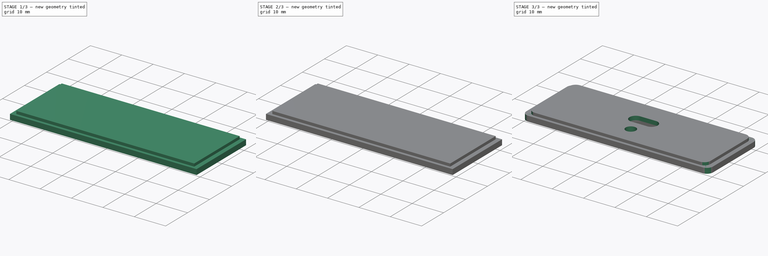
[diagram: build sequence overview — one tinted view per stage of 3, left to right]
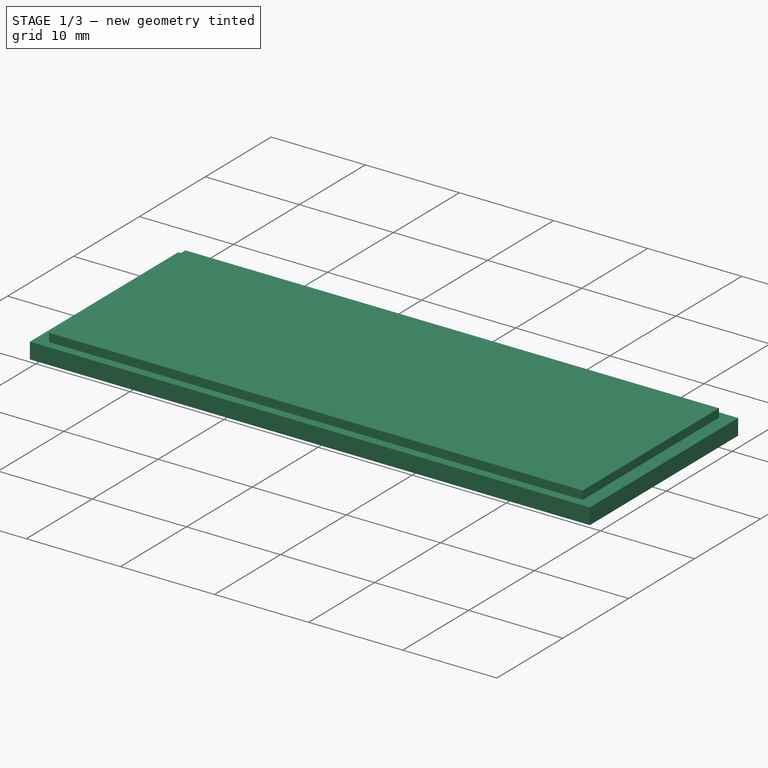
[diagram: stage 1 of 3 — iso view after this stage's code; geometry added in this stage tinted green]
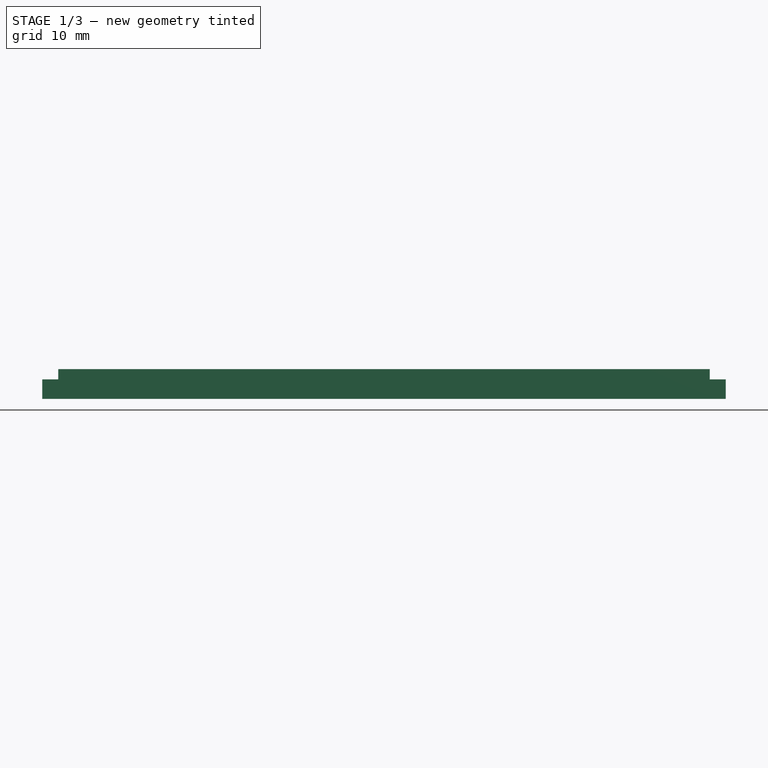
[diagram: stage 1 of 3 — front view after this stage's code; geometry added in this stage tinted green]
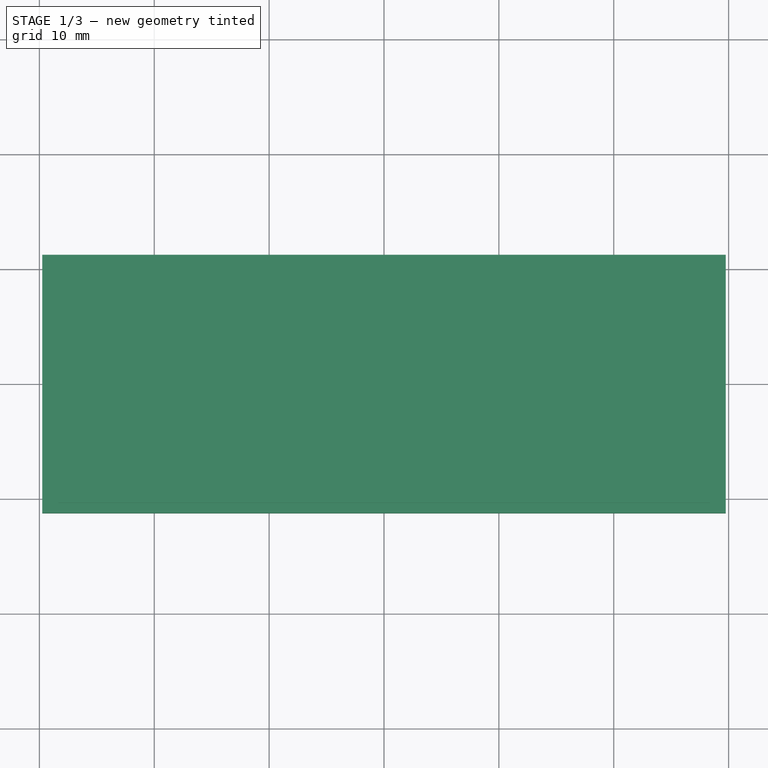
[diagram: stage 1 of 3 — top view after this stage's code; geometry added in this stage tinted green]
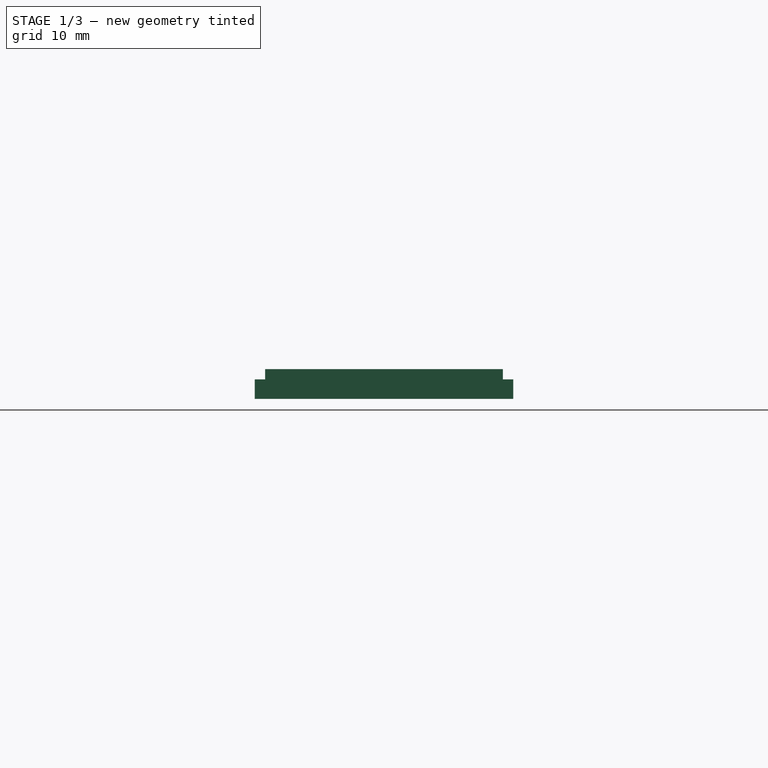
[diagram: stage 1 of 3 — right view after this stage's code; geometry added in this stage tinted green]
FCSTD DOCUMENT  (FreeCAD 0.18.4R)
Label: end_panel2
License: All rights reserved
LicenseURL: http://en.wikipedia.org/wiki/All_rights_reserved
objects: Sketcher::SketchObject×5, PartDesign::Pocket×3, PartDesign::Pad×2, PartDesign::Fillet×1, PartDesign::Body×1, TechDraw::DrawSVGTemplate×1, TechDraw::DrawViewPart×1, TechDraw::DrawPage×1
note: 17 computed .brp shape members not serialized (recipe doc carries the construction recipe); baked Part::Feature solids carry a one-line shape summary decoded from their .brp

FEATURE [Sketcher::SketchObject] Sketch
  MapMode = 5
  Support = -> [XY_Plane]
  sketch-geometry (4):
    g0: LineSegment StartX=-29.75 StartY=11.25 StartZ=0 EndX=29.75 EndY=11.25 EndZ=0
    g1: LineSegment StartX=29.75 StartY=11.25 StartZ=0 EndX=29.75 EndY=-11.25 EndZ=0
    g2: LineSegment StartX=29.75 StartY=-11.25 StartZ=0 EndX=-29.75 EndY=-11.25 EndZ=0
    g3: LineSegment StartX=-29.75 StartY=-11.25 StartZ=0 EndX=-29.75 EndY=11.25 EndZ=0
  constraints (11):
    c: Coincident(g0,g1)
    c: Coincident(g1,g2)
    c: Coincident(g2,g3)
    c: Coincident(g3,g0)
    c: Horizontal(g0)
    c: Horizontal(g2)
    c: Vertical(g1)
    c: Vertical(g3)
    c: Symmetric(g0,g2,g-1)
    c: DistanceX(g0,g0) = 59.5
    c: DistanceY(g3,g3) = 22.5
FEATURE [PartDesign::Pad] Pad
  Length = 1.7
  Length2 = 100
  Profile = -> Sketch
  Refine = true
  Type = 0
FEATURE [Sketcher::SketchObject] Sketch001
  MapMode = 5
  Placement = pos=(0,0,1.7) rot=(0,0,1;0rad)
  Support = -> [Pad]
  sketch-geometry (4):
    g0: LineSegment StartX=-28.35 StartY=10.35 StartZ=0 EndX=28.35 EndY=10.35 EndZ=0
    g1: LineSegment StartX=28.35 StartY=10.35 StartZ=0 EndX=28.35 EndY=-10.35 EndZ=0
    g2: LineSegment StartX=28.35 StartY=-10.35 StartZ=0 EndX=-28.35 EndY=-10.35 EndZ=0
    g3: LineSegment StartX=-28.35 StartY=-10.35 StartZ=0 EndX=-28.35 EndY=10.35 EndZ=0
  constraints (11):
    c: Coincident(g0,g1)
    c: Coincident(g1,g2)
    c: Coincident(g2,g3)
    c: Coincident(g3,g0)
    c: Horizontal(g0)
    c: Horizontal(g2)
    c: Vertical(g1)
    c: Vertical(g3)
    c: Symmetric(g2,g0,g-1)
    c: DistanceX(g0,g0) = 56.7
    c: DistanceY(g3,g3) = 20.7
FEATURE [PartDesign::Pad] Pad001
  BaseFeature = -> Pad
  Length = 0.9
  Length2 = 100
  Profile = -> Sketch001
  Refine = true
  Type = 0
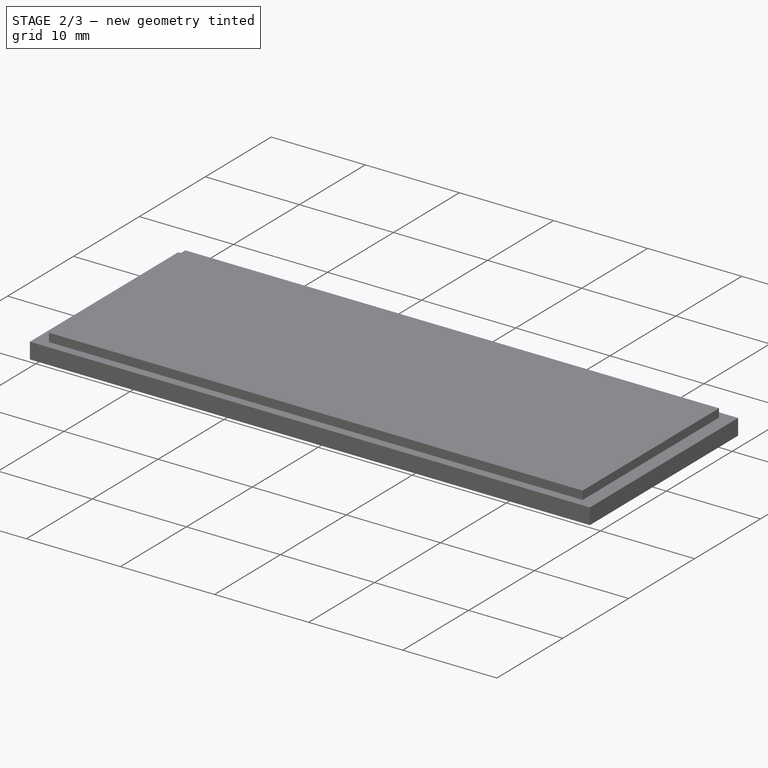
[diagram: stage 2 of 3 — iso view after this stage's code; geometry added in this stage tinted green]
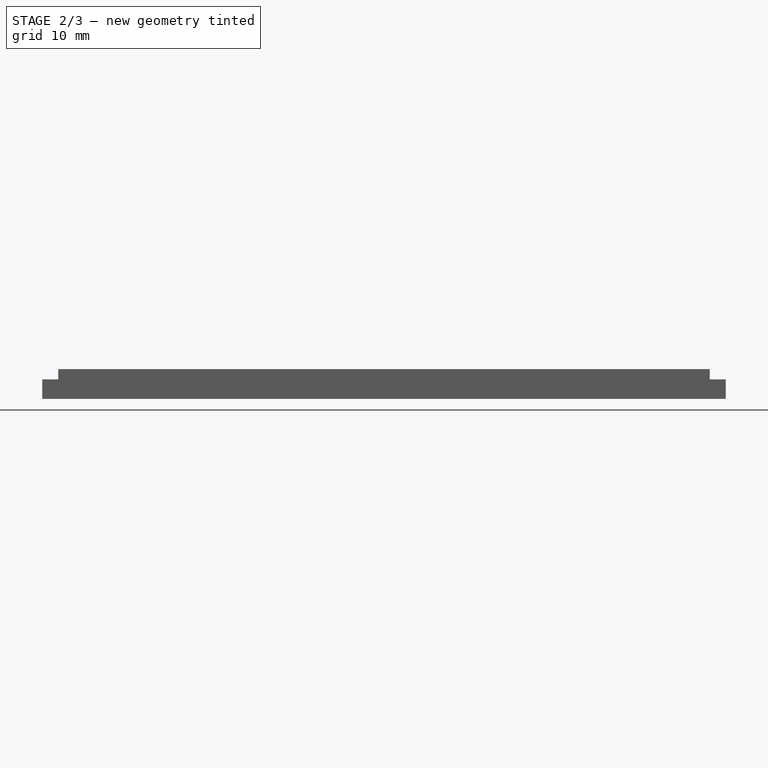
[diagram: stage 2 of 3 — front view after this stage's code; geometry added in this stage tinted green]
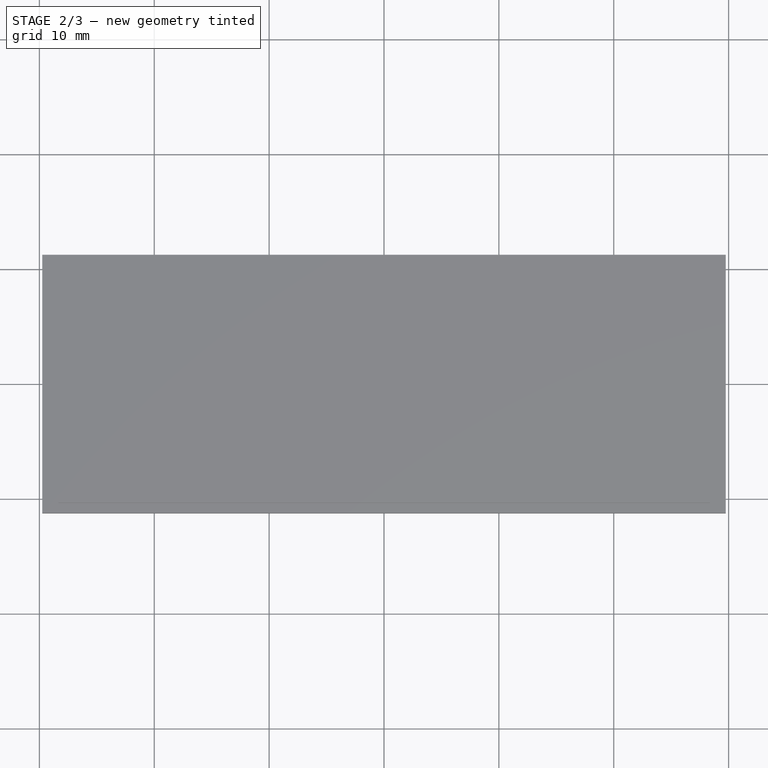
[diagram: stage 2 of 3 — top view after this stage's code; geometry added in this stage tinted green]
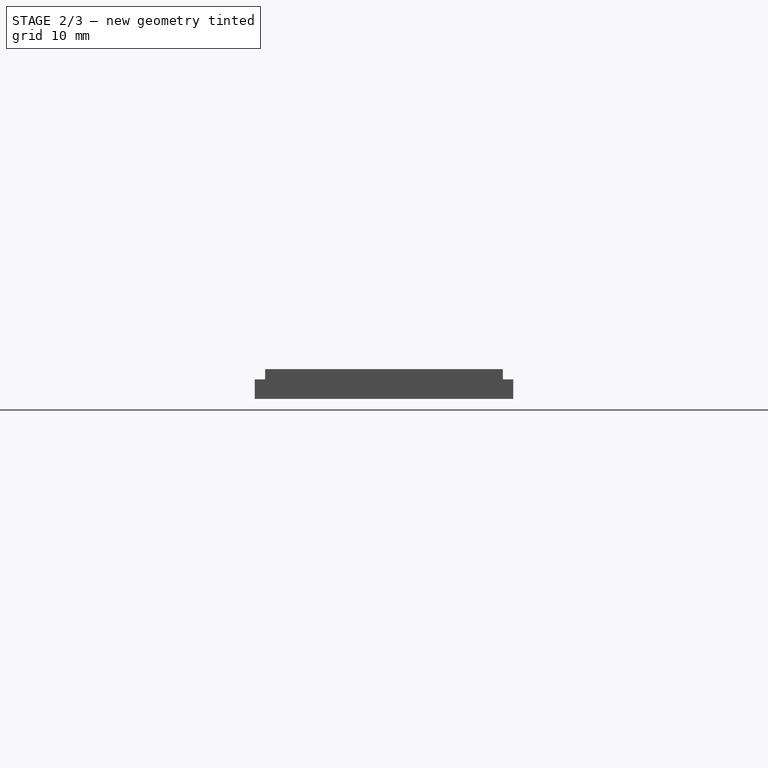
[diagram: stage 2 of 3 — right view after this stage's code; geometry added in this stage tinted green]
FEATURE [Sketcher::SketchObject] Sketch002
  ExternalGeometry = -> [Pad001]
  MapMode = 5
  Placement = pos=(0,0,0) rot=(1,0,0;3.14159rad)
  Support = -> [Pad001]
  expr: Constraints[28] = 6 + 1.6 + 2
  sketch-geometry (12):
    g0: LineSegment StartX=3.17543 StartY=4.175 StartZ=0 EndX=1.58771 EndY=6.925 EndZ=0
    g1: LineSegment StartX=1.58771 StartY=6.925 StartZ=0 EndX=-1.58771 EndY=6.925 EndZ=0
    g2: LineSegment StartX=-1.58771 StartY=6.925 StartZ=0 EndX=-3.17543 EndY=4.175 EndZ=0
    g3: LineSegment StartX=-3.17543 StartY=4.175 StartZ=0 EndX=-1.58771 EndY=1.425 EndZ=0
    g4: LineSegment StartX=-1.58771 StartY=1.425 StartZ=0 EndX=1.58771 EndY=1.425 EndZ=0
    g5: LineSegment StartX=1.58771 StartY=1.425 StartZ=0 EndX=3.17543 EndY=4.175 EndZ=0
    g6: Circle [constr] CenterX=0 CenterY=4.175 CenterZ=0 NormalX=0 NormalY=0 NormalZ=1 AngleXU=0 Radius=3.17543
    g7: LineSegment StartX=-5.25 StartY=0.925 StartZ=0 EndX=5.25 EndY=0.925 EndZ=0
    g8: LineSegment StartX=5.25 StartY=0.925 StartZ=0 EndX=5.25 EndY=-4.225 EndZ=0
    g9: LineSegment StartX=5.25 StartY=-4.225 StartZ=0 EndX=-5.25 EndY=-4.225 EndZ=0
    g10: LineSegment StartX=-5.25 StartY=-4.225 StartZ=0 EndX=-5.25 EndY=0.925 EndZ=0
    g11: GeomPoint X=0 Y=-1.65 Z=0
  constraints (30):
    c: Coincident(g0,g1)
    c: Coincident(g1,g2)
    c: Coincident(g2,g3)
    c: Coincident(g3,g4)
    c: Coincident(g4,g5)
    c: Coincident(g5,g0)
    c: Equal(g0, g1-g5) x5
    c: PointOnObject(g0,g6)
    c: PointOnObject(g1,g6)
    c: PointOnObject(g2,g6)
    c: PointOnObject(g3,g6)
    c: PointOnObject(g4,g6)
    c: PointOnObject(g5,g6)
    c: PointOnObject(g6,g-2)
    c: Horizontal(g1)
    c: Distance(g0,g4) = 5.5
    c: Coincident(g7,g8)
    c: Coincident(g8,g9)
    c: Coincident(g9,g10)
    c: Coincident(g10,g7)
    c: Horizontal(g9)
    c: Vertical(g8)
    c: Vertical(g10)
    c: PointOnObject(g11,g-2)
    c: DistanceY(g-3,g11) = 9.6
    c: Symmetric(g7,g9,g11)
    c: Horizontal(g7)
    c: DistanceY(g10,g10) = 5.15
    c: DistanceX(g7,g7) = 10.5
    c: DistanceY(g8,g6) = 8.4
FEATURE [PartDesign::Pocket] Pocket
  BaseFeature = -> Pad001
  Length = 0.7
  Length2 = 100
  Profile = -> Sketch002
  Refine = true
  Type = 0
FEATURE [Sketcher::SketchObject] Sketch003
  ExternalGeometry = -> [Pocket]
  MapMode = 5
  Placement = pos=(0,0,0.7) rot=(1,0,0;3.14159rad)
  Support = -> [Pocket]
  sketch-geometry (7):
    g0: GeomPoint X=-3e-16 Y=-1.65 Z=0
    g1: ArcOfCircle CenterX=-2.5 CenterY=-1.65 CenterZ=0 NormalX=0 NormalY=0 NormalZ=1 AngleXU=0 Radius=2.5 StartAngle=1.5708 EndAngle=4.71239
    g2: ArcOfCircle CenterX=2.5 CenterY=-1.65 CenterZ=0 NormalX=0 NormalY=0 NormalZ=1 AngleXU=0 Radius=2.5 StartAngle=4.71239 EndAngle=7.85398
    g3: LineSegment StartX=-2.5 StartY=-4.15 StartZ=0 EndX=2.5 EndY=-4.15 EndZ=0
    g4: LineSegment StartX=-2.5 StartY=0.85 StartZ=0 EndX=2.5 EndY=0.85 EndZ=0
    g5: GeomPoint X=-5 Y=-1.65 Z=0
    g6: GeomPoint X=5 Y=-1.65 Z=0
  constraints (14):
    c: Symmetric(g-7,g-8,g0)
    c: Tangent(g1,g4) = 1.5708
    c: Tangent(g1,g3) = -1.5708
    c: Tangent(g3,g2) = -1.5708
    c: Tangent(g4,g2) = 1.5708
    c: Horizontal(g3)
    c: Equal(g1,g2)
    c: Symmetric(g1,g2,g0)
    c: PointOnObject(g5,g1)
    c: PointOnObject(g6,g2)
    c: Horizontal(g5,g0)
    c: Horizontal(g0,g6)
    c: DistanceX(g5,g6) = 10
    c: DistanceY(g2,g2) = 5
FEATURE [PartDesign::Pocket] Pocket001
  BaseFeature = -> Pocket
  Length = 0.6
  Length2 = 100
  Profile = -> Sketch003
  Refine = true
  Type = 0
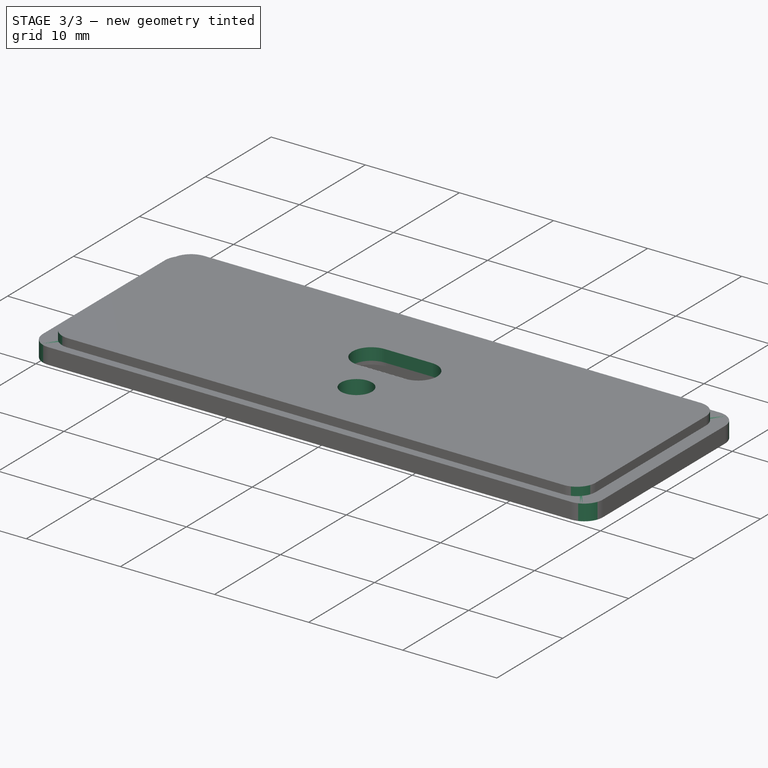
[diagram: stage 3 of 3 — iso view after this stage's code; geometry added in this stage tinted green]
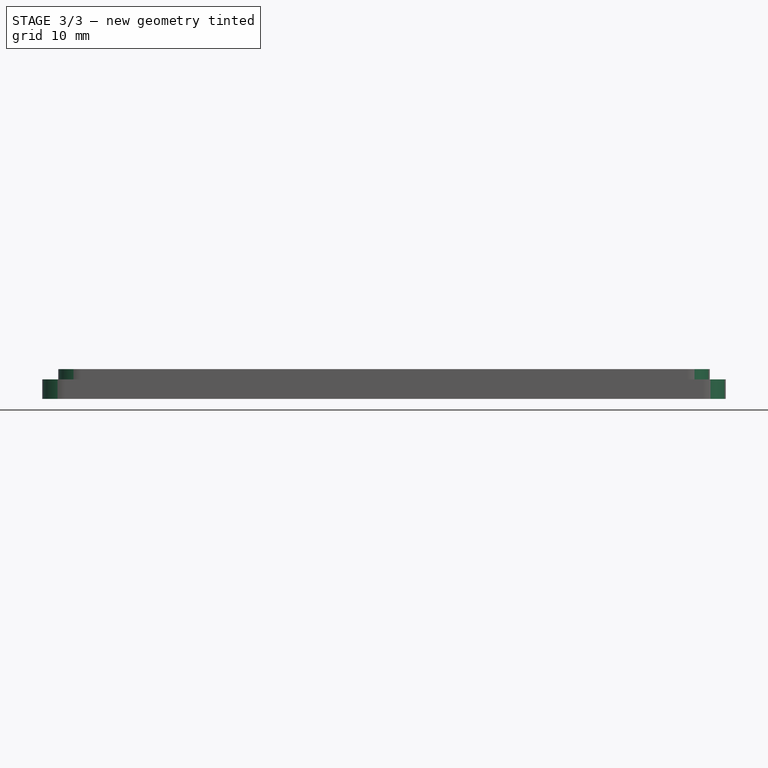
[diagram: stage 3 of 3 — front view after this stage's code; geometry added in this stage tinted green]
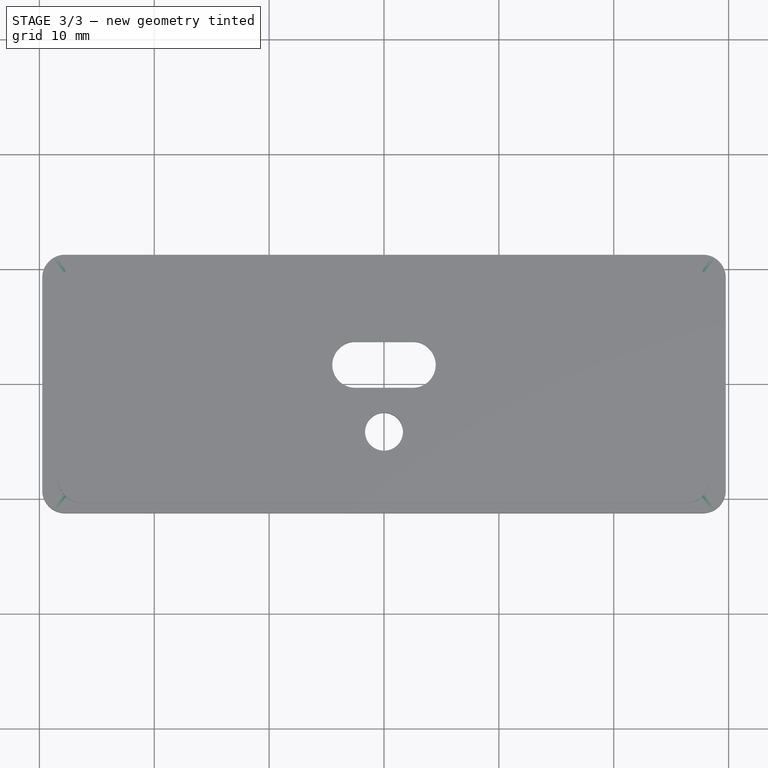
[diagram: stage 3 of 3 — top view after this stage's code; geometry added in this stage tinted green]
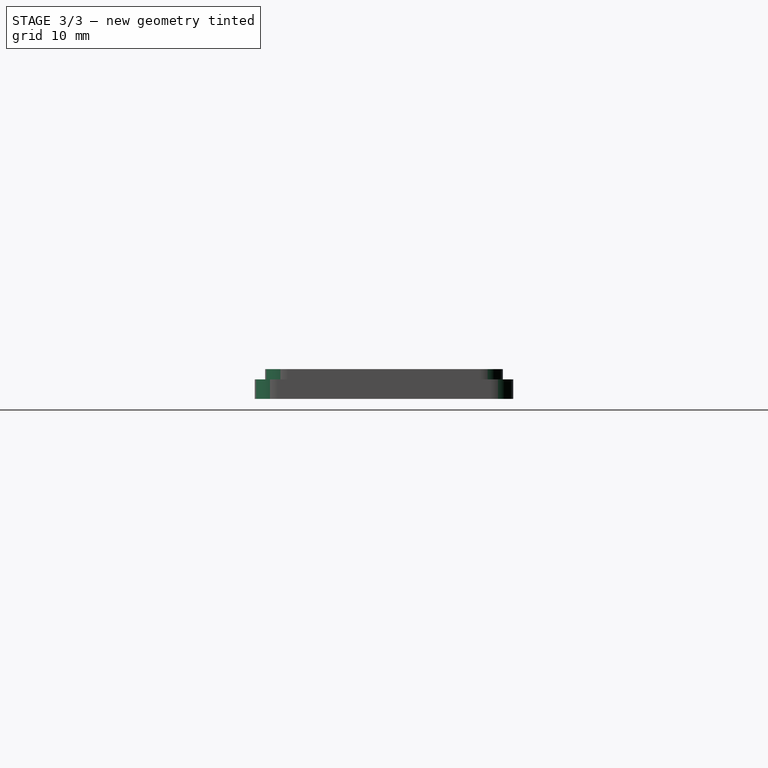
[diagram: stage 3 of 3 — right view after this stage's code; geometry added in this stage tinted green]
FEATURE [Sketcher::SketchObject] Sketch004
  ExternalGeometry = -> [Pocket001]
  MapMode = 5
  Placement = pos=(0,0,0.7) rot=(1,0,0;3.14159rad)
  Support = -> [Pocket001]
  sketch-geometry (8):
    g0: GeomPoint X=0 Y=4.175 Z=0
    g1: GeomPoint X=-3e-16 Y=-1.65 Z=0
    g2: ArcOfCircle CenterX=-2.5 CenterY=-1.65 CenterZ=0 NormalX=0 NormalY=0 NormalZ=1 AngleXU=0 Radius=2 StartAngle=1.5708 EndAngle=4.71239
    g3: ArcOfCircle CenterX=2.5 CenterY=-1.65 CenterZ=0 NormalX=0 NormalY=0 NormalZ=1 AngleXU=0 Radius=2 StartAngle=4.71239 EndAngle=7.85398
    g4: LineSegment StartX=-2.5 StartY=-3.65 StartZ=0 EndX=2.5 EndY=-3.65 EndZ=0
    g5: LineSegment StartX=-2.5 StartY=0.35 StartZ=0 EndX=2.5 EndY=0.35 EndZ=0
    g6: LineSegment [constr] StartX=-4.5 StartY=-1.65 StartZ=0 EndX=4.5 EndY=-1.65 EndZ=0
    g7: Circle CenterX=0 CenterY=4.175 CenterZ=0 NormalX=0 NormalY=0 NormalZ=1 AngleXU=0 Radius=1.65
  constraints (17):
    c: Symmetric(g-5,g-6,g1)
    c: Symmetric(g-3,g-4,g0)
    c: Tangent(g2,g5) = 1.5708
    c: Tangent(g2,g4) = -1.5708
    c: Tangent(g4,g3) = -1.5708
    c: Tangent(g5,g3) = 1.5708
    c: Horizontal(g4)
    c: Equal(g2,g3)
    c: Symmetric(g3,g2,g1)
    c: PointOnObject(g6,g2)
    c: PointOnObject(g6,g3)
    c: PointOnObject(g1,g6)
    c: Horizontal(g6)
    c: DistanceX(g6,g6) = 9
    c: DistanceY(g3,g3) = 4
    c: Coincident(g7,g0)
    c: Diameter(g7) = 3.3
FEATURE [PartDesign::Pocket] Pocket002
  BaseFeature = -> Pocket001
  Length = 5
  Length2 = 100
  Profile = -> Sketch004
  Refine = true
  Type = 1
FEATURE [PartDesign::Fillet] Fillet
  Base = -> Pocket002 [Edge5,Edge52,Edge1,Edge47,Edge50,Edge8,Edge48,Edge2]
  BaseFeature = -> Pocket002
  Radius = 2
FEATURE [PartDesign::Body] Body
  Group = -> [Sketch,Pad,Sketch001,Pad001,Sketch002,Pocket,Sketch003,Pocket001,Sketch004,Pocket002,Fillet]
  Origin = -> Origin
  Tip = -> Fillet
FEATURE [TechDraw::DrawSVGTemplate] Template
  EditableTexts = Designed_by_Name=Designed by Name; Drawing_number=Drawing number; FC-Date=Date; FC-SC=Scale; FC-SH=Sheet; FC-Title=Title; Subtitle=Subtitle; Weight=Weight
  Height = 210
  Orientation = 1
  Width = 297
FEATURE [TechDraw::DrawViewPart] View
  CoarseView = false
  Direction = (0,0,1)
  Focus = 100
  HardHidden = false
  IsoCount = 0
  IsoHidden = false
  IsoVisible = false
  LockPosition = false
  Perspective = false
  Rotation = 0
  ScaleType = 0
  SeamHidden = false
  SeamVisible = false
  SmoothHidden = false
  SmoothVisible = false
  Source = -> [Pad]
  X = 148.5
  Y = 105
FEATURE [TechDraw::DrawPage] Page
  KeepUpdated = true
  ProjectionType = 0
  Template = -> Template
  Views = -> [View]
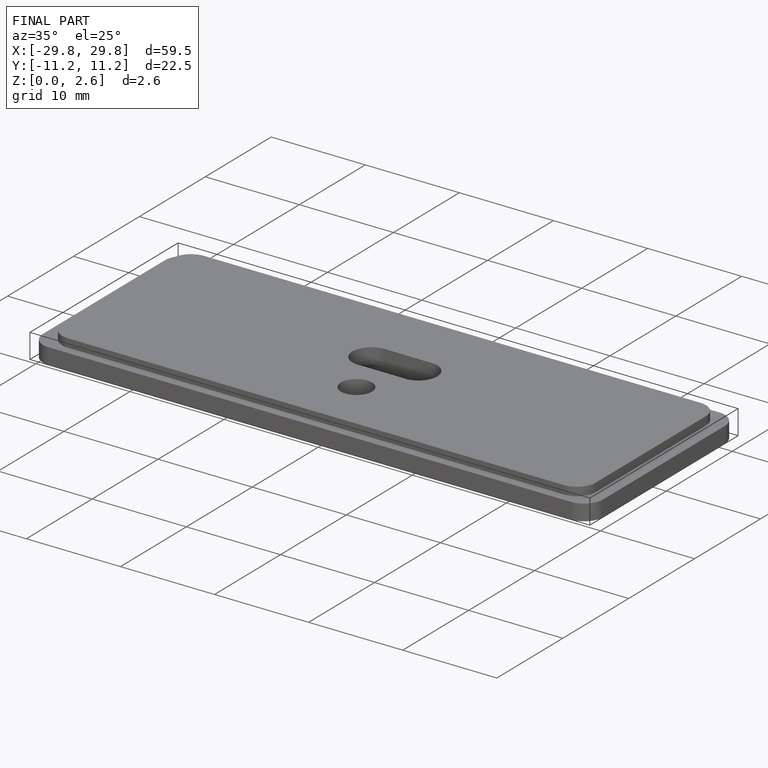
[diagram: finished part — iso view with bounding-box wireframe]
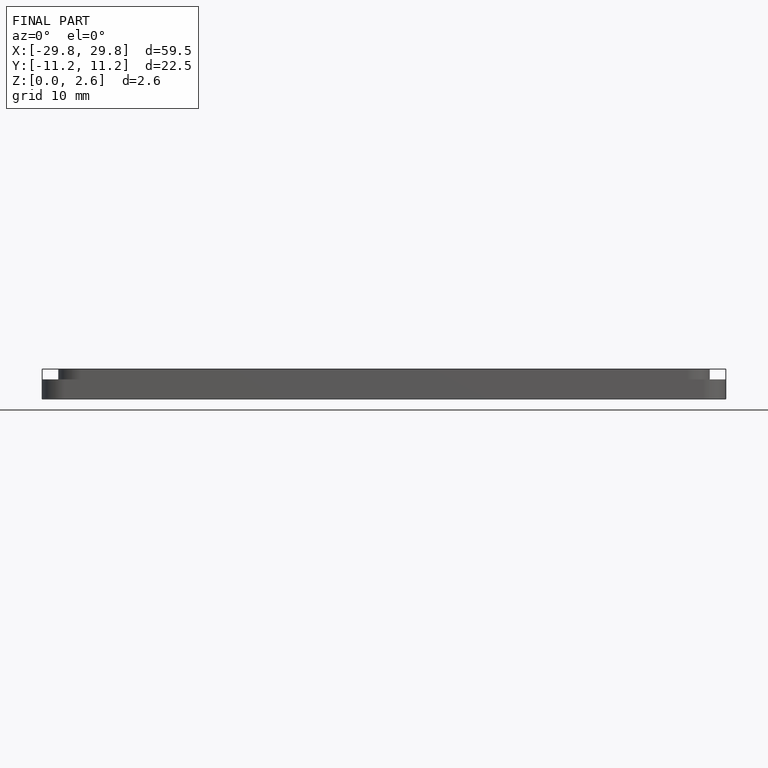
[diagram: finished part — front view with bounding-box wireframe]
